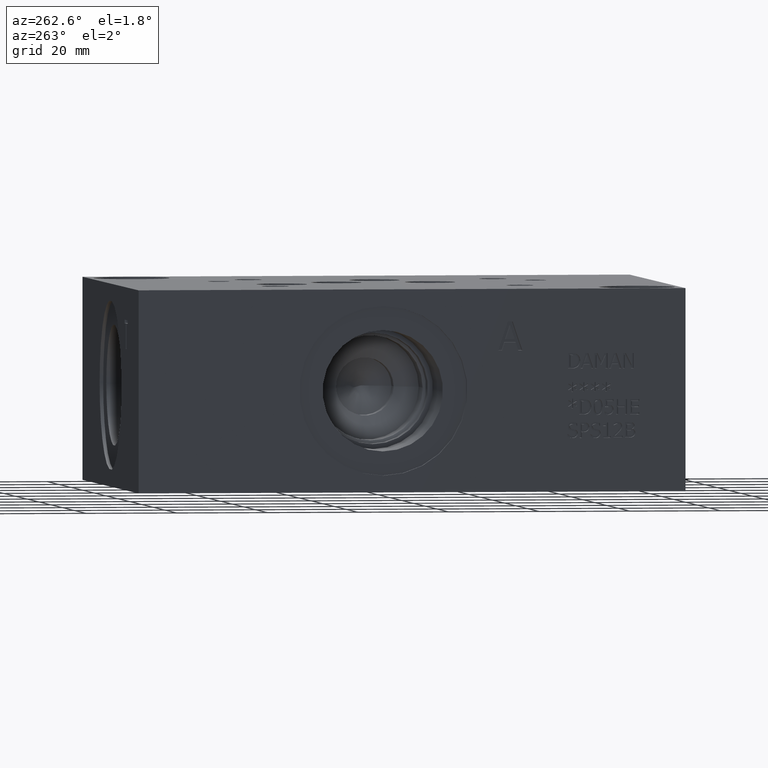
[diagram: clean part render]
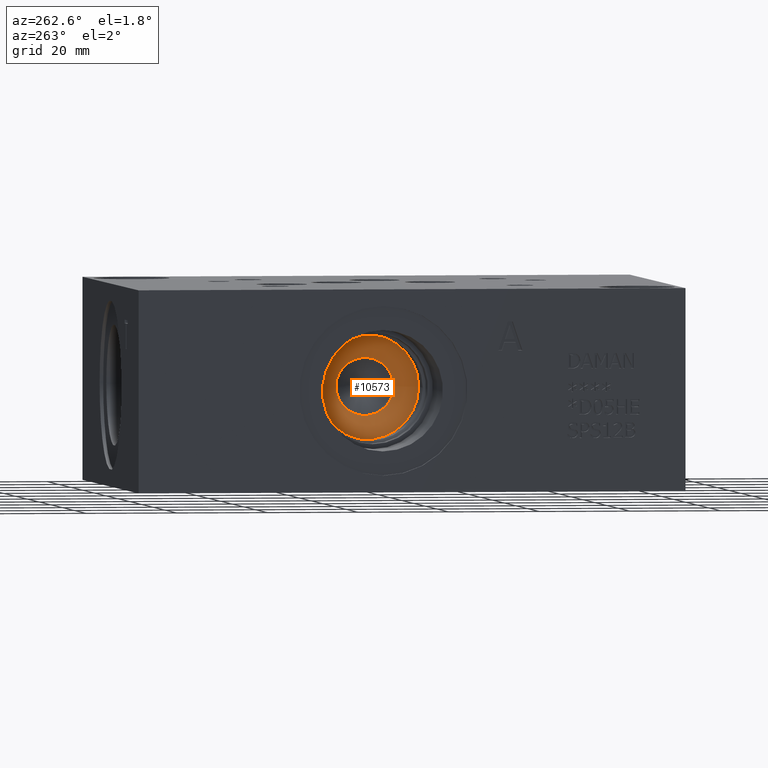
[diagram: same view with one face highlighted and labeled with its STEP entity id]
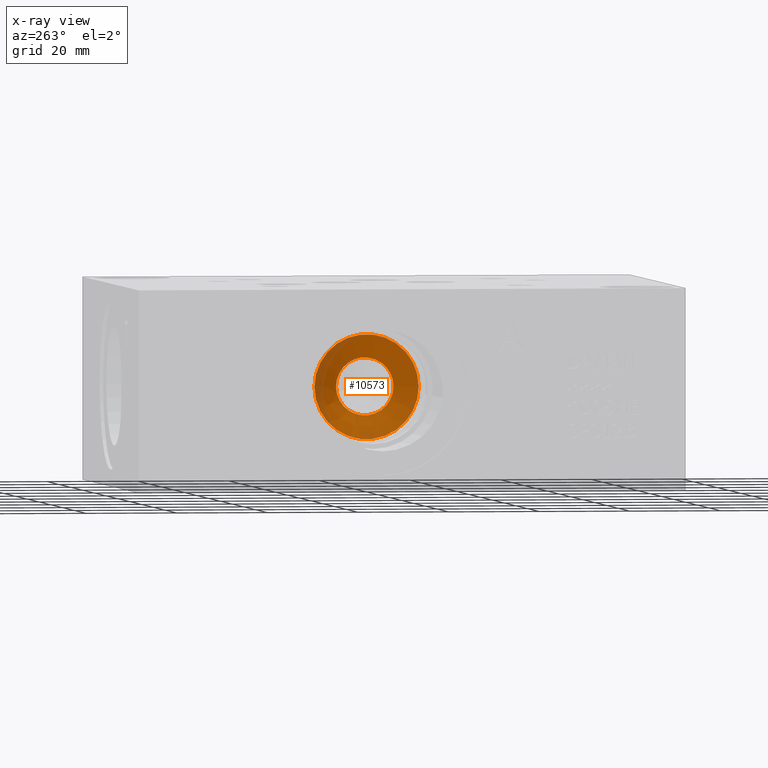
[diagram: x-ray of the same camera — body ghosted, the highlighted face saturated]
A machine part, auxiliary view. The second image highlights one B-rep face of the part: STEP entity #10573.
The next image is the same camera in x-ray: the body ghosted, the highlighted face saturated — about 12% of this face is hidden behind the body in this view.
In plain terms, the highlighted conical surface has half-angle 60 deg.
Its self-contained STEP definition (entity closure, byte-faithful):
#24=CONICAL_SURFACE('',#11077,5.7531,1.0471975511966);
#161=CIRCLE('',#11076,6.35);
#162=CIRCLE('',#11078,11.5062);
#163=CIRCLE('',#11079,11.5062);
#1192=FACE_OUTER_BOUND('',#1781,.T.);
#1781=EDGE_LOOP('',(#9042,#9043,#9044,#9045,#9046));
#2857=LINE('',#17806,#3897);
#3897=VECTOR('',#13097,5.7531);
#4842=VERTEX_POINT('',#17799);
#4843=VERTEX_POINT('',#17803);
#4844=VERTEX_POINT('',#17804);
#6274=EDGE_CURVE('',#4842,#4842,#161,.T.);
#6276=EDGE_CURVE('',#4843,#4844,#162,.T.);
#6277=EDGE_CURVE('',#4844,#4842,#2857,.T.);
#6278=EDGE_CURVE('',#4844,#4843,#163,.T.);
#9042=ORIENTED_EDGE('',*,*,#6276,.T.);
#9043=ORIENTED_EDGE('',*,*,#6277,.T.);
#9044=ORIENTED_EDGE('',*,*,#6274,.T.);
#9045=ORIENTED_EDGE('',*,*,#6277,.F.);
#9046=ORIENTED_EDGE('',*,*,#6278,.T.);
#10573=ADVANCED_FACE('',(#1192),#24,.F.);
#11076=AXIS2_PLACEMENT_3D('',#17800,#13090,#13091);
#11077=AXIS2_PLACEMENT_3D('',#17802,#13093,#13094);
#11078=AXIS2_PLACEMENT_3D('',#17805,#13095,#13096);
#11079=AXIS2_PLACEMENT_3D('',#17807,#13098,#13099);
#13090=DIRECTION('center_axis',(1.,0.,0.));
#13091=DIRECTION('ref_axis',(0.,1.,0.));
#13093=DIRECTION('center_axis',(-1.,0.,0.));
#13094=DIRECTION('ref_axis',(0.,1.,0.));
#13095=DIRECTION('center_axis',(-1.,0.,0.));
#13096=DIRECTION('ref_axis',(0.,1.,0.));
#13097=DIRECTION('',(0.5,0.866025403784439,-1.06057523872491E-16));
#13098=DIRECTION('center_axis',(-1.,0.,0.));
#13099=DIRECTION('ref_axis',(0.,1.,0.));
#17799=CARTESIAN_POINT('',(31.3741334579955,60.325,22.225));
#17800=CARTESIAN_POINT('Origin',(31.3741334579955,66.675,22.225));
#17802=CARTESIAN_POINT('Origin',(31.7187538336748,66.675,22.225));
#17803=CARTESIAN_POINT('',(28.3972,78.1812,22.225));
#17804=CARTESIAN_POINT('',(28.3972,55.1688,22.225));
#17805=CARTESIAN_POINT('Origin',(28.3972,66.675,22.225));
#17806=CARTESIAN_POINT('',(31.7187538336748,60.9219,22.225));
#17807=CARTESIAN_POINT('Origin',(28.3972,66.675,22.225));